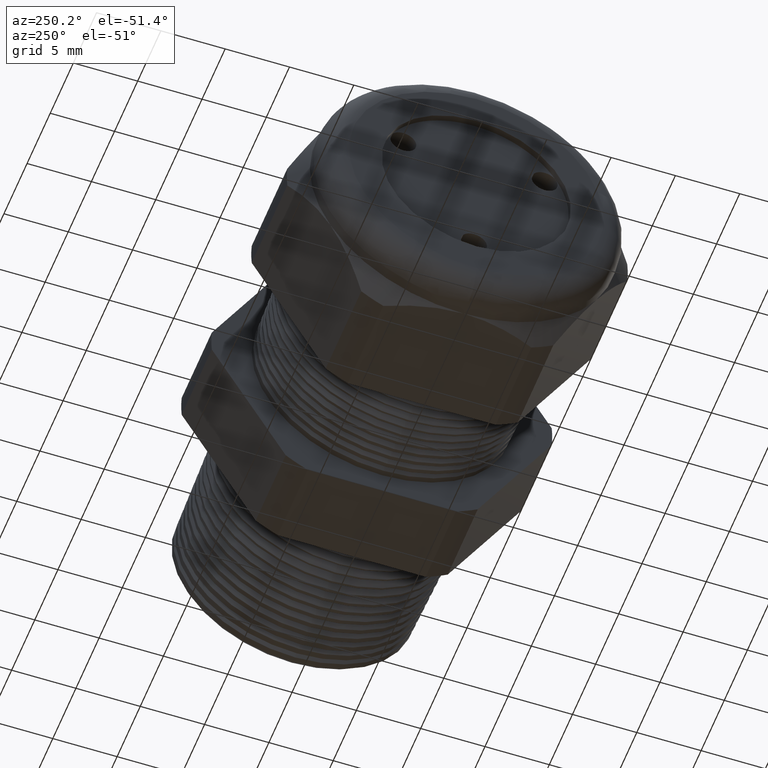
[diagram: clean part render]
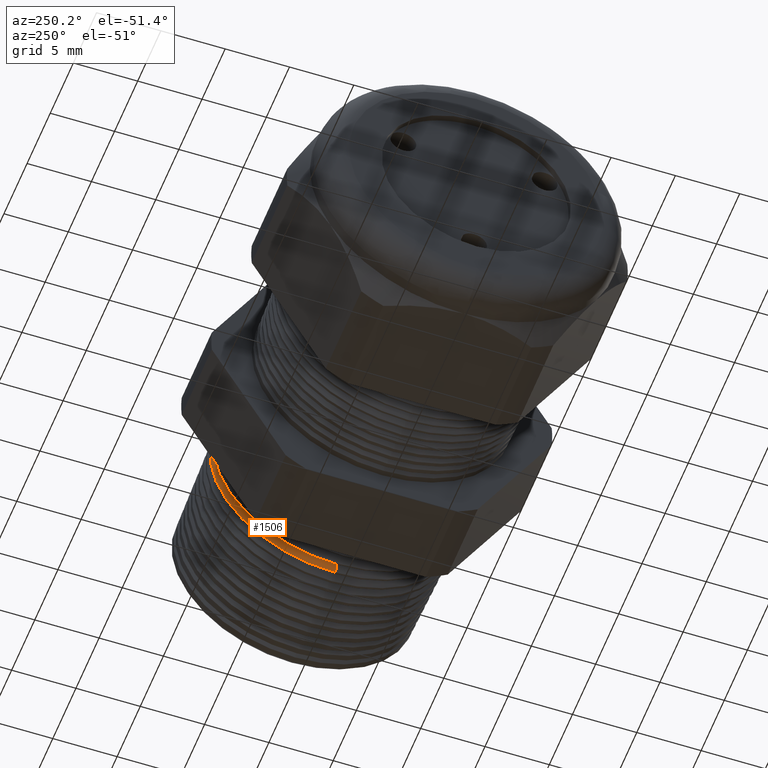
[diagram: same view with one face highlighted and labeled with its STEP entity id]
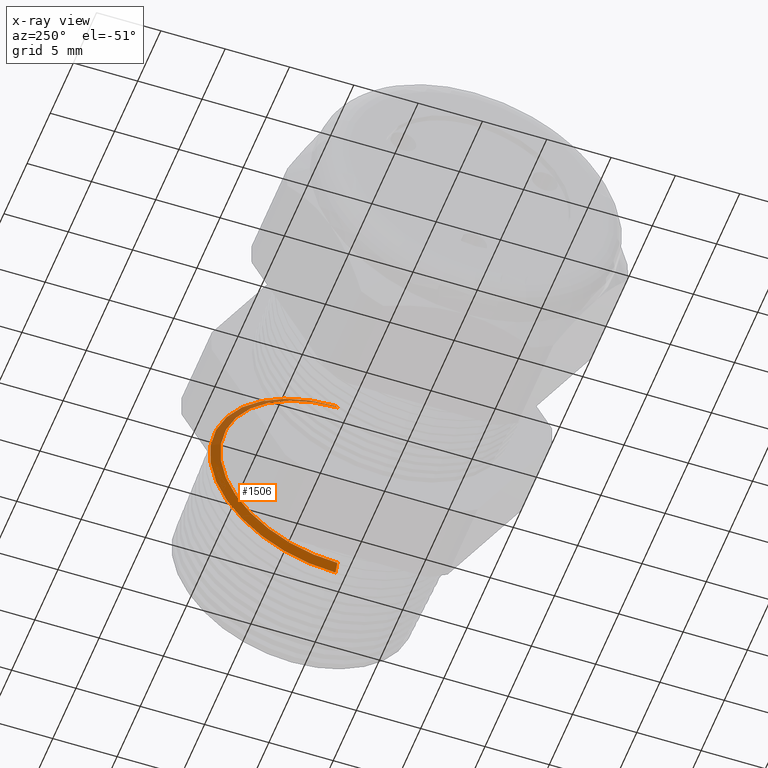
[diagram: x-ray of the same camera — body ghosted, the highlighted face saturated]
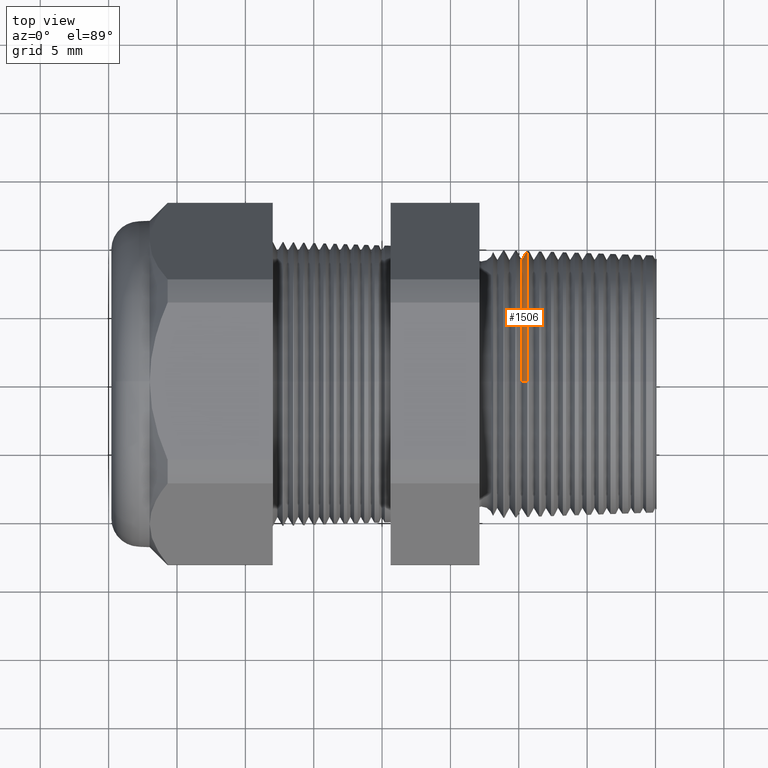
[diagram: same view with one face highlighted and labeled with its STEP entity id]
A machine part, auxiliary view. The second image highlights one B-rep face of the part: STEP entity #1506.
The next image is the same camera in x-ray: the body ghosted, the highlighted face saturated — about 31% of this face is hidden behind the body in this view.
A second angle (top view) of the same face is appended — the face is thin or edge-on in the first view.
In plain terms, the highlighted conical surface has half-angle 58 deg.
Its self-contained STEP definition (entity closure, byte-faithful):
#1425 = VERTEX_POINT ( 'NONE', #4437 ) ;
#1426 = ORIENTED_EDGE ( 'NONE', *, *, #1434, .F. ) ;
#1427 = EDGE_LOOP ( 'NONE', ( #1507, #1428, #1437, #1426 ) ) ;
#1428 = ORIENTED_EDGE ( 'NONE', *, *, #1429, .T. ) ;
#1429 = EDGE_CURVE ( 'NONE', #1433, #1430, #4436, .T. ) ;
#1430 = VERTEX_POINT ( 'NONE', #4432 ) ;
#1431 = EDGE_CURVE ( 'NONE', #1432, #1433, #4431, .T. ) ;
#1432 = VERTEX_POINT ( 'NONE', #4426 ) ;
#1433 = VERTEX_POINT ( 'NONE', #4425 ) ;
#1434 = EDGE_CURVE ( 'NONE', #1432, #1425, #4424, .T. ) ;
#1437 = ORIENTED_EDGE ( 'NONE', *, *, #1508, .T. ) ;
#1506 = ADVANCED_FACE ( 'NONE', ( #4596 ), #4594, .T. ) ;
#1507 = ORIENTED_EDGE ( 'NONE', *, *, #1431, .T. ) ;
#1508 = EDGE_CURVE ( 'NONE', #1430, #1425, #4590, .T. ) ;
#4421 = DIRECTION ( 'NONE',  ( 0.5299192642331890200, 0.0000000000000000000, -0.8480480961564357300 ) ) ;
#4422 = VECTOR ( 'NONE', #4421, 39.37007874015748900 ) ;
#4423 = CARTESIAN_POINT ( 'NONE',  ( -0.1887370280109210400, 0.0000000000000000000, -0.3586208171594783600 ) ) ;
#4424 = LINE ( 'NONE', #4423, #4422 ) ;
#4425 = CARTESIAN_POINT ( 'NONE',  ( -0.1887370280109210400, 0.0000000000000000000, 0.3586208171594783600 ) ) ;
#4426 = CARTESIAN_POINT ( 'NONE',  ( -0.1887370280109210400, 4.556248116737945200E-017, -0.3586208171594783600 ) ) ;
#4427 = DIRECTION ( 'NONE',  ( 0.0000000000000000000, 0.0000000000000000000, -1.000000000000000000 ) ) ;
#4428 = DIRECTION ( 'NONE',  ( 1.000000000000000000, 0.0000000000000000000, 0.0000000000000000000 ) ) ;
#4429 = CARTESIAN_POINT ( 'NONE',  ( -0.1887370280109210400, 0.0000000000000000000, 0.0000000000000000000 ) ) ;
#4430 = AXIS2_PLACEMENT_3D ( 'NONE', #4429, #4428, #4427 ) ;
#4431 = CIRCLE ( 'NONE', #4430, 0.3586208171594783600 ) ;
#4432 = CARTESIAN_POINT ( 'NONE',  ( -0.1726223543229806500, 0.0000000000000000000, 0.3844096858865190800 ) ) ;
#4433 = DIRECTION ( 'NONE',  ( 0.5299192642331890200, 1.038559386480985800E-016, 0.8480480961564357300 ) ) ;
#4434 = VECTOR ( 'NONE', #4433, 39.37007874015748900 ) ;
#4435 = CARTESIAN_POINT ( 'NONE',  ( -0.1887370280109210400, 4.391838358419634200E-017, 0.3586208171594783600 ) ) ;
#4436 = LINE ( 'NONE', #4435, #4434 ) ;
#4437 = CARTESIAN_POINT ( 'NONE',  ( -0.1726223543229806500, 4.707660913821650200E-017, -0.3844096858865190800 ) ) ;
#4586 = DIRECTION ( 'NONE',  ( 0.0000000000000000000, 0.0000000000000000000, -1.000000000000000000 ) ) ;
#4587 = DIRECTION ( 'NONE',  ( -1.000000000000000000, 0.0000000000000000000, 0.0000000000000000000 ) ) ;
#4588 = CARTESIAN_POINT ( 'NONE',  ( -0.1726223543229806500, 0.0000000000000000000, 0.0000000000000000000 ) ) ;
#4589 = AXIS2_PLACEMENT_3D ( 'NONE', #4588, #4587, #4586 ) ;
#4590 = CIRCLE ( 'NONE', #4589, 0.3844096858865190800 ) ;
#4591 = DIRECTION ( 'NONE',  ( 0.0000000000000000000, 0.0000000000000000000, -1.000000000000000000 ) ) ;
#4592 = DIRECTION ( 'NONE',  ( 1.000000000000000000, 0.0000000000000000000, 0.0000000000000000000 ) ) ;
#4593 = AXIS2_PLACEMENT_3D ( 'NONE', #4595, #4592, #4591 ) ;
#4594 = CONICAL_SURFACE ( 'NONE', #4593, 0.3586208171594783600, 1.012290966156729900 ) ;
#4595 = CARTESIAN_POINT ( 'NONE',  ( -0.1887370280109210400, 0.0000000000000000000, 0.0000000000000000000 ) ) ;
#4596 = FACE_OUTER_BOUND ( 'NONE', #1427, .T. ) ;